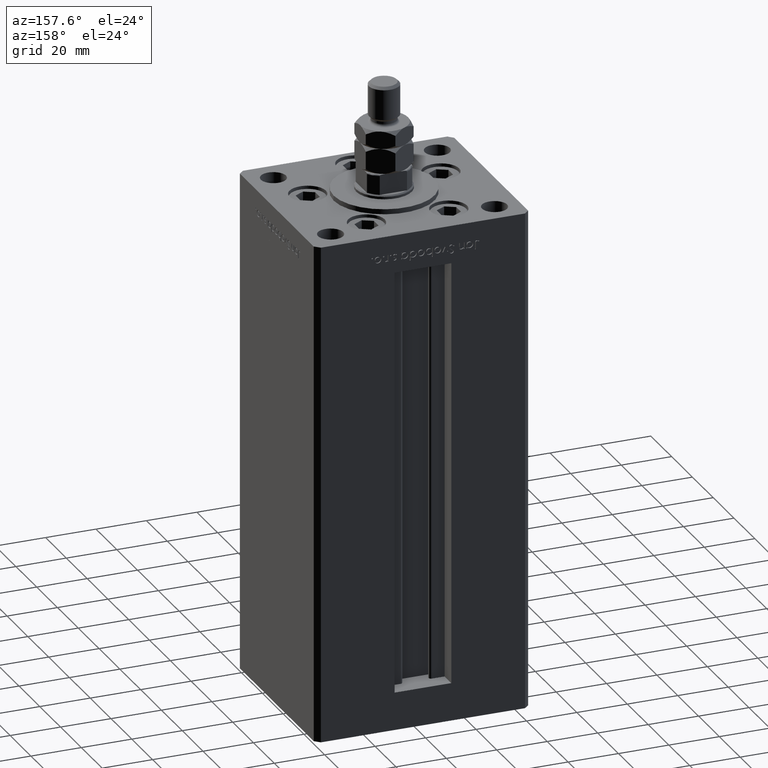
[diagram: clean part render]
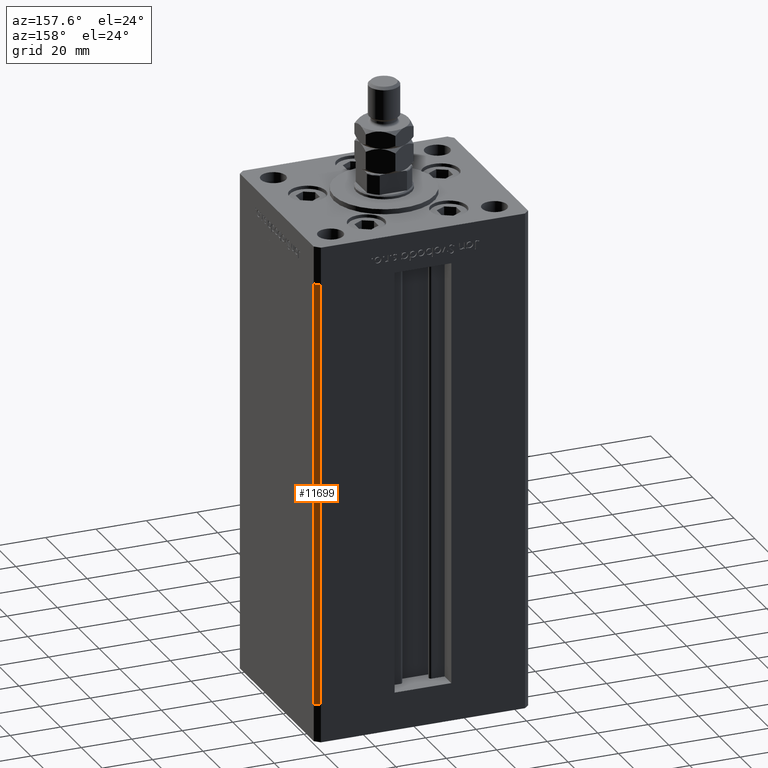
[diagram: same view with one face highlighted and labeled with its STEP entity id]
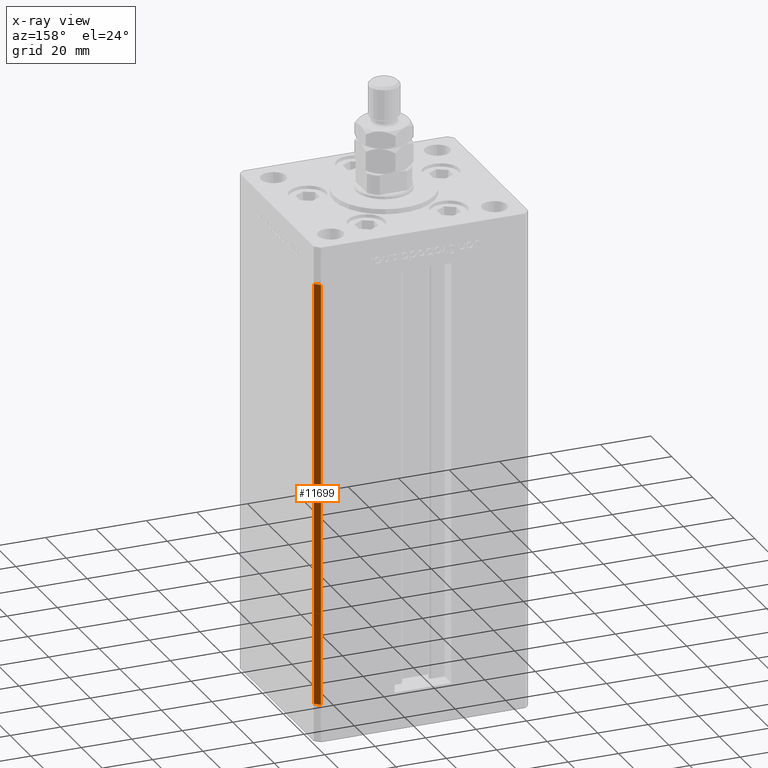
[diagram: x-ray of the same camera — body ghosted, the highlighted face saturated]
A machine part, auxiliary view. The second image highlights one B-rep face of the part: STEP entity #11699.
The next image is the same camera in x-ray: the body ghosted, the highlighted face saturated — about 0% of this face is hidden behind the body in this view.
In plain terms, the highlighted planar face has unit normal (0.7071, 0.7071, 0).
Its self-contained STEP definition (entity closure, byte-faithful):
#209 = EDGE_CURVE ( 'NONE', #1368, #11640, #18868, .T. ) ;
#1368 = VERTEX_POINT ( 'NONE', #7195 ) ;
#3772 = CARTESIAN_POINT ( 'NONE',  ( 42.50000000000000711, 35.50000000000001421, 168.5000000000000000 ) ) ;
#4963 = VECTOR ( 'NONE', #28624, 1000.000000000000114 ) ;
#5710 = ORIENTED_EDGE ( 'NONE', *, *, #41311, .T. ) ;
#6379 = VECTOR ( 'NONE', #31389, 1000.000000000000000 ) ;
#7195 = CARTESIAN_POINT ( 'NONE',  ( 40.50000000000000000, 37.50000000000000711, 168.5000000000000000 ) ) ;
#7725 = EDGE_CURVE ( 'NONE', #11640, #35253, #49248, .T. ) ;
#11031 = VERTEX_POINT ( 'NONE', #3772 ) ;
#11413 = DIRECTION ( 'NONE',  ( 0.7071067811865451302, 0.7071067811865500152, -0.000000000000000000 ) ) ;
#11640 = VERTEX_POINT ( 'NONE', #42411 ) ;
#11699 = ADVANCED_FACE ( 'NONE', ( #26933 ), #28800, .T. ) ;
#15404 = VECTOR ( 'NONE', #28162, 1000.000000000000000 ) ;
#18868 = LINE ( 'NONE', #35444, #6379 ) ;
#24873 = CARTESIAN_POINT ( 'NONE',  ( 42.50000000000000711, 35.50000000000001421, 168.5000000000000000 ) ) ;
#26933 = FACE_OUTER_BOUND ( 'NONE', #31931, .T. ) ;
#28014 = VECTOR ( 'NONE', #51594, 1000.000000000000114 ) ;
#28162 = DIRECTION ( 'NONE',  ( -0.000000000000000000, -0.000000000000000000, -1.000000000000000000 ) ) ;
#28624 = DIRECTION ( 'NONE',  ( 0.7071067811865500152, -0.7071067811865451302, 0.000000000000000000 ) ) ;
#28800 = PLANE ( 'NONE',  #43278 ) ;
#29104 = ORIENTED_EDGE ( 'NONE', *, *, #32274, .T. ) ;
#30414 = CARTESIAN_POINT ( 'NONE',  ( 40.50000000000000000, 37.50000000000000711, 168.5000000000000000 ) ) ;
#31389 = DIRECTION ( 'NONE',  ( -0.000000000000000000, -0.000000000000000000, -1.000000000000000000 ) ) ;
#31931 = EDGE_LOOP ( 'NONE', ( #37180, #41052, #29104, #5710 ) ) ;
#32274 = EDGE_CURVE ( 'NONE', #1368, #11031, #51867, .T. ) ;
#35253 = VERTEX_POINT ( 'NONE', #51276 ) ;
#35444 = CARTESIAN_POINT ( 'NONE',  ( 40.50000000000000000, 37.50000000000000711, 168.5000000000000000 ) ) ;
#36415 = CARTESIAN_POINT ( 'NONE',  ( 40.50000000000000000, 37.50000000000000711, 168.5000000000000000 ) ) ;
#37180 = ORIENTED_EDGE ( 'NONE', *, *, #7725, .F. ) ;
#40384 = LINE ( 'NONE', #24873, #15404 ) ;
#40851 = CARTESIAN_POINT ( 'NONE',  ( 40.50000000000000000, 37.50000000000000711, 0.000000000000000000 ) ) ;
#41052 = ORIENTED_EDGE ( 'NONE', *, *, #209, .F. ) ;
#41311 = EDGE_CURVE ( 'NONE', #11031, #35253, #40384, .T. ) ;
#42411 = CARTESIAN_POINT ( 'NONE',  ( 40.50000000000000000, 37.50000000000000711, 0.000000000000000000 ) ) ;
#43278 = AXIS2_PLACEMENT_3D ( 'NONE', #36415, #11413, #45087 ) ;
#45087 = DIRECTION ( 'NONE',  ( -0.7071067811865500152, 0.7071067811865451302, 0.000000000000000000 ) ) ;
#49248 = LINE ( 'NONE', #40851, #4963 ) ;
#51276 = CARTESIAN_POINT ( 'NONE',  ( 42.50000000000000711, 35.50000000000001421, 0.000000000000000000 ) ) ;
#51594 = DIRECTION ( 'NONE',  ( 0.7071067811865500152, -0.7071067811865451302, 0.000000000000000000 ) ) ;
#51867 = LINE ( 'NONE', #30414, #28014 ) ;